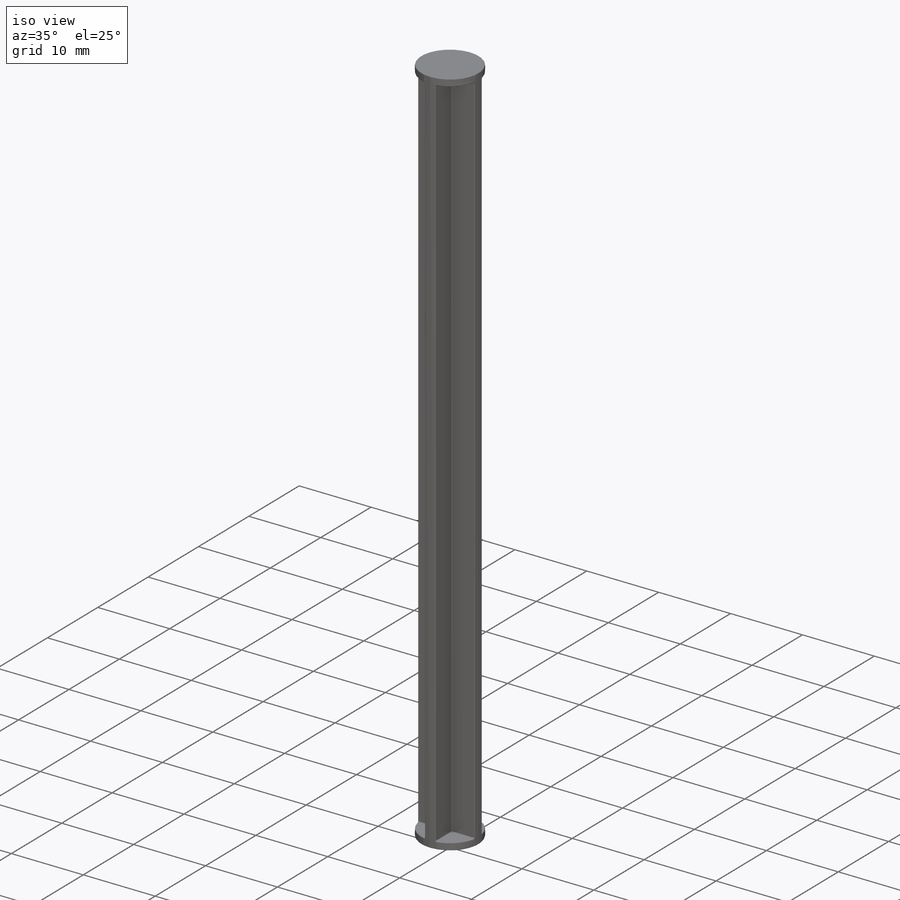
[diagram: iso view]
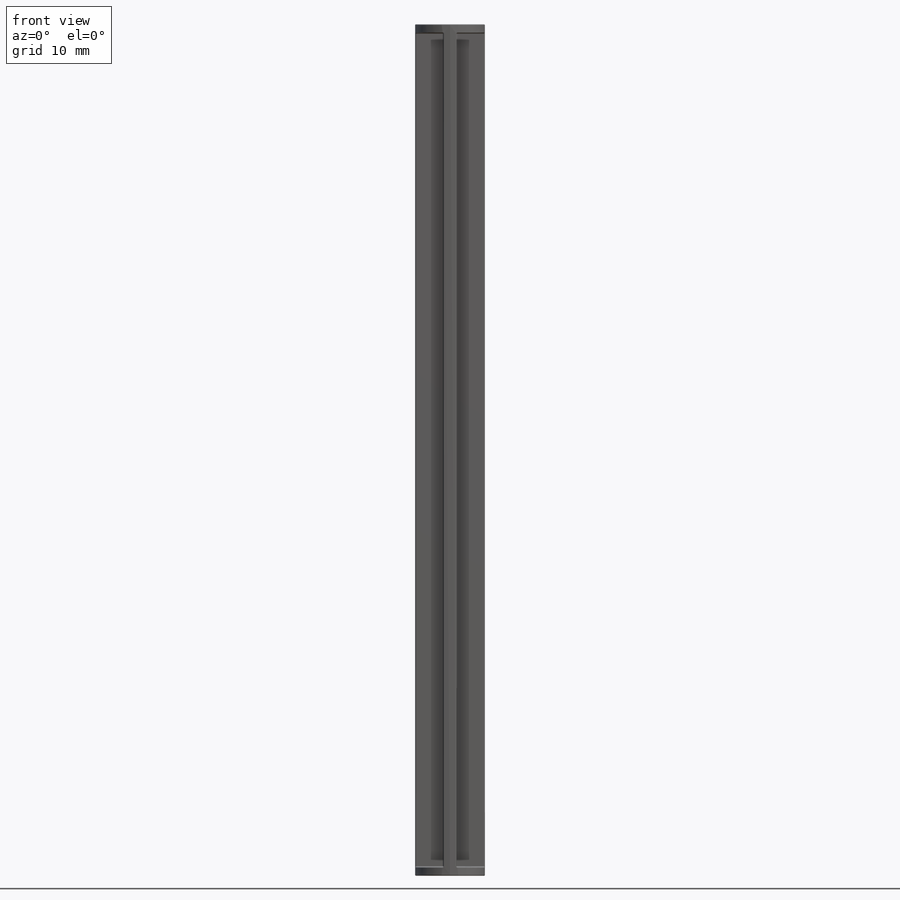
[diagram: front view]
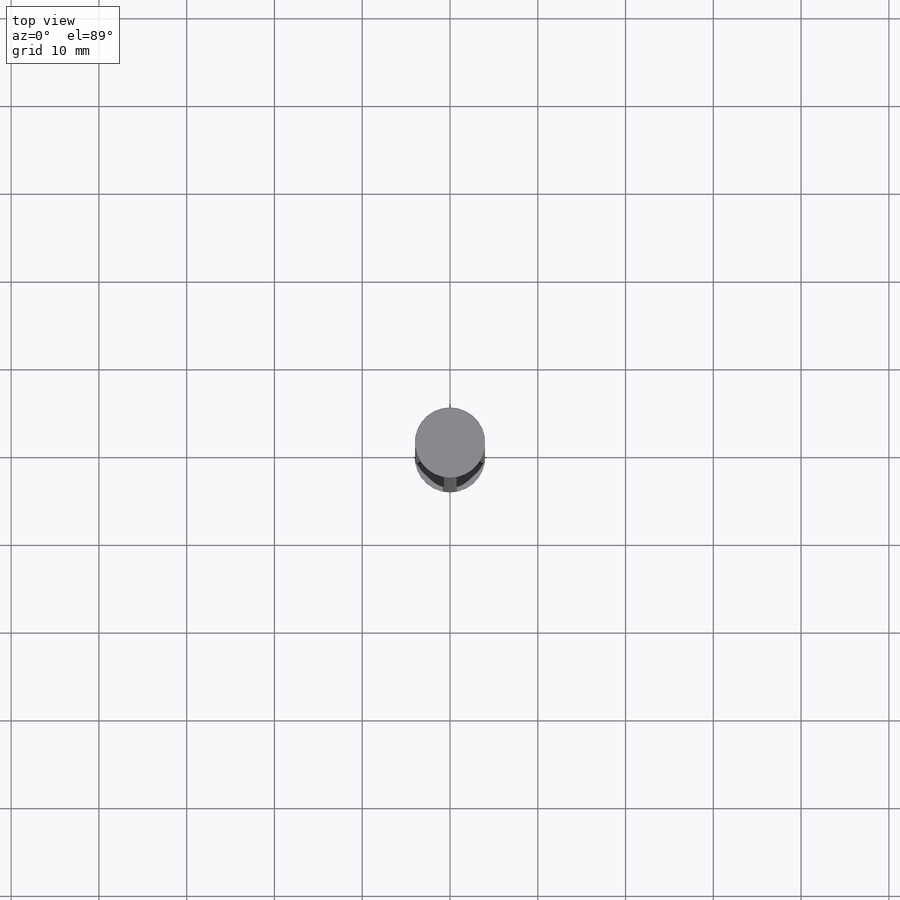
[diagram: top view]
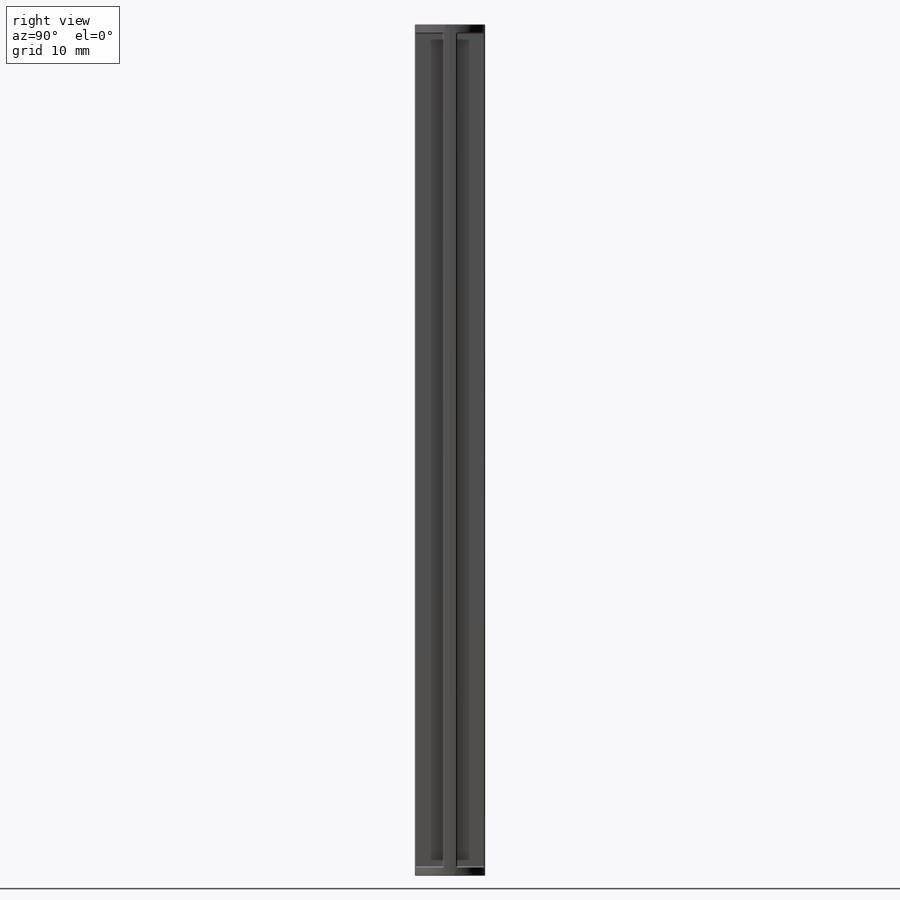
[diagram: right view]
SOLIDWORKS PART (.sldprt)
format: sldprt  version: not decoded by parser v0  size: 308,224 bytes
history: native  units: mm
features: sketch x2, material x1, extrude x1, cut_extrude x1, fillet x1 (+11 scaffold rows collapsed)
feature tree (17):
  scaffold x11  (default folders/planes/origin — collapsed)
  material  "Material <not specified>"
  sketch  "Sketch1"  dims[D1=8.0mm]
  extrude  "Boss-Extrude1"  Depth=97mm
  sketch  "Sketch2"  dims[D2=1.5mm D3=1.5mm D4=1.5mm D5=1.5mm D6=0.75mm D7=0.75mm D8=0.75mm D1=0.0mm]
  cut_extrude  "Cut-Extrude1"  Depth=95mm
  fillet  "Fillet1"  Radius=0.1mm
decode coverage: 5 of 5 modeling features carry decoded parameters
note: suppression state not decoded; provenance and decode notes live in map.json
